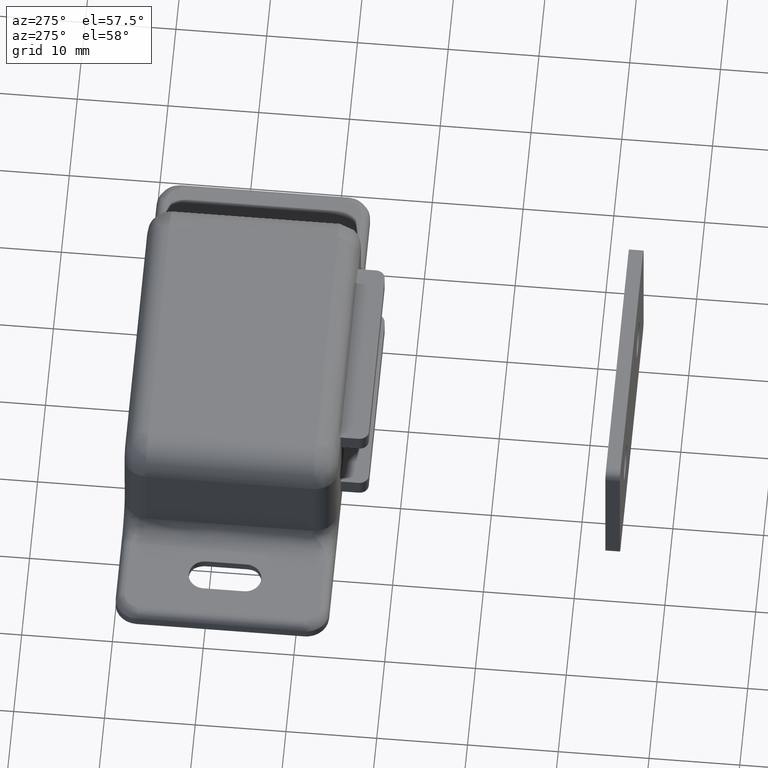
[diagram: clean part render]
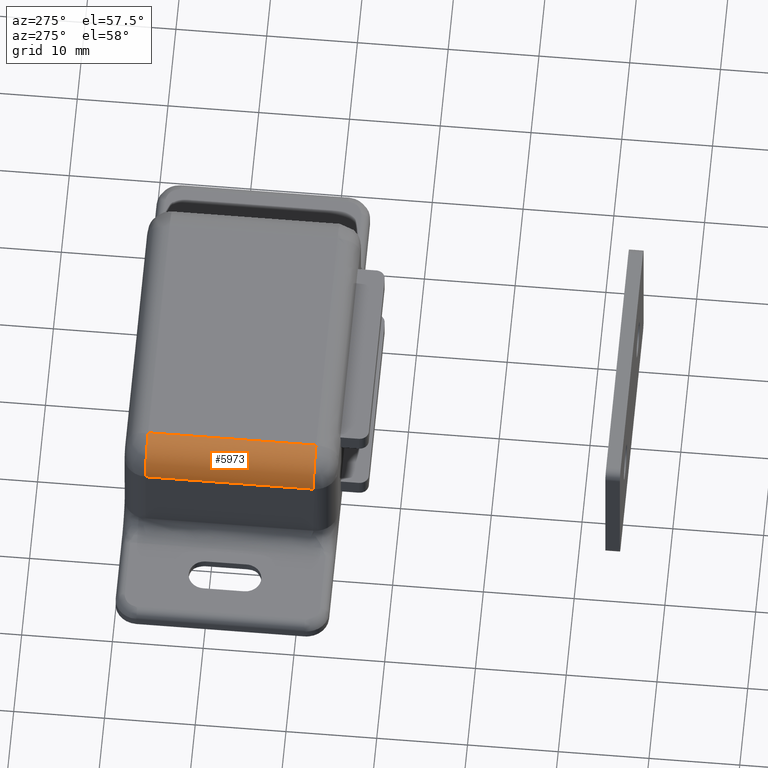
[diagram: same view with one face highlighted and labeled with its STEP entity id]
A machine part, auxiliary view. The second image highlights one B-rep face of the part: STEP entity #5973.
In plain terms, the highlighted face is a freeform B-spline surface patch.
Its self-contained STEP definition (entity closure, byte-faithful):
#4590=CARTESIAN_POINT('',(-17.000004000000001,-21.0,12.499999999999840));
#4591=VERTEX_POINT('',#4590);
#4718=CARTESIAN_POINT('',(-13.500004000000001,-21.0,16.0));
#4719=VERTEX_POINT('',#4718);
#4733=CARTESIAN_POINT('',(-17.000004000000001,-21.0,12.499999999999840));
#4734=CARTESIAN_POINT('',(-17.000003999999997,-21.000000000000007,15.999999999999844));
#4735=CARTESIAN_POINT('',(-13.500004000000001,-21.0,16.0));
#4743=(BOUNDED_CURVE()B_SPLINE_CURVE(2,(#4733,#4734,#4735),.UNSPECIFIED.,.F.,.U.)CURVE()GEOMETRIC_REPRESENTATION_ITEM()QUASI_UNIFORM_CURVE()RATIONAL_B_SPLINE_CURVE((1.0,0.707106781186547,1.0))REPRESENTATION_ITEM(''));
#4744=EDGE_CURVE('',#4591,#4719,#4743,.T.);
#5268=CARTESIAN_POINT('',(-17.000004000000001,-2.500000000000000,12.499999999999840));
#5269=VERTEX_POINT('',#5268);
#5387=CARTESIAN_POINT('',(-13.500004000000001,-2.500000000000000,16.0));
#5388=VERTEX_POINT('',#5387);
#5418=CARTESIAN_POINT('',(-13.500004000000001,-2.500000000000000,16.0));
#5419=CARTESIAN_POINT('',(-17.000003999999997,-2.500000000000000,15.999999999999844));
#5420=CARTESIAN_POINT('',(-17.000004000000001,-2.500000000000000,12.499999999999840));
#5428=(BOUNDED_CURVE()B_SPLINE_CURVE(2,(#5418,#5419,#5420),.UNSPECIFIED.,.F.,.U.)CURVE()GEOMETRIC_REPRESENTATION_ITEM()QUASI_UNIFORM_CURVE()RATIONAL_B_SPLINE_CURVE((1.0,0.707106781186547,1.0))REPRESENTATION_ITEM(''));
#5429=EDGE_CURVE('',#5388,#5269,#5428,.T.);
#5945=CARTESIAN_POINT('',(-13.347336144221320,-21.462500000000009,15.996668775536341));
#5946=CARTESIAN_POINT('',(-13.347336144221330,-2.025937500000001,15.996668775536341));
#5947=CARTESIAN_POINT('',(-17.266214936090506,-21.462500000000013,16.167770718733518));
#5948=CARTESIAN_POINT('',(-17.266214936090506,-2.025937500000002,16.167770718733518));
#5949=CARTESIAN_POINT('',(-16.991404195659985,-21.462500000000009,12.254796668567588));
#5950=CARTESIAN_POINT('',(-16.991404195659985,-2.025937500000002,12.254796668567598));
#5958=(BOUNDED_SURFACE()B_SPLINE_SURFACE(1,2,((#5945,#5947,#5949),(#5946,#5948,#5950)),.UNSPECIFIED.,.F.,.F.,.U.)B_SPLINE_SURFACE_WITH_KNOTS((2,2),(3,3),(0.0,19.436562500000012),(0.0,6.271098900620489),.UNSPECIFIED.)GEOMETRIC_REPRESENTATION_ITEM()RATIONAL_B_SPLINE_SURFACE(((1.0,0.664513897938721,0.996233562438472),(1.0,0.664513897938721,0.996233562438472)))REPRESENTATION_ITEM('')SURFACE());
#5959=CARTESIAN_POINT('',(-13.500004000000001,-2.500000000000000,16.0));
#5960=CARTESIAN_POINT('',(-13.500004000000001,-21.0,16.0));
#5961=QUASI_UNIFORM_CURVE('',1,(#5959,#5960),.UNSPECIFIED.,.F.,.U.);
#5962=EDGE_CURVE('',#5388,#4719,#5961,.T.);
#5963=ORIENTED_EDGE('',*,*,#5962,.F.);
#5964=ORIENTED_EDGE('',*,*,#5429,.T.);
#5965=CARTESIAN_POINT('',(-17.000004000000001,-21.0,12.499999999999840));
#5966=CARTESIAN_POINT('',(-17.000004000000001,-2.500000000000000,12.499999999999840));
#5967=QUASI_UNIFORM_CURVE('',1,(#5965,#5966),.UNSPECIFIED.,.F.,.U.);
#5968=EDGE_CURVE('',#4591,#5269,#5967,.T.);
#5969=ORIENTED_EDGE('',*,*,#5968,.F.);
#5970=ORIENTED_EDGE('',*,*,#4744,.T.);
#5971=EDGE_LOOP('',(#5963,#5964,#5969,#5970));
#5972=FACE_OUTER_BOUND('',#5971,.T.);
#5973=ADVANCED_FACE('',(#5972),#5958,.T.);